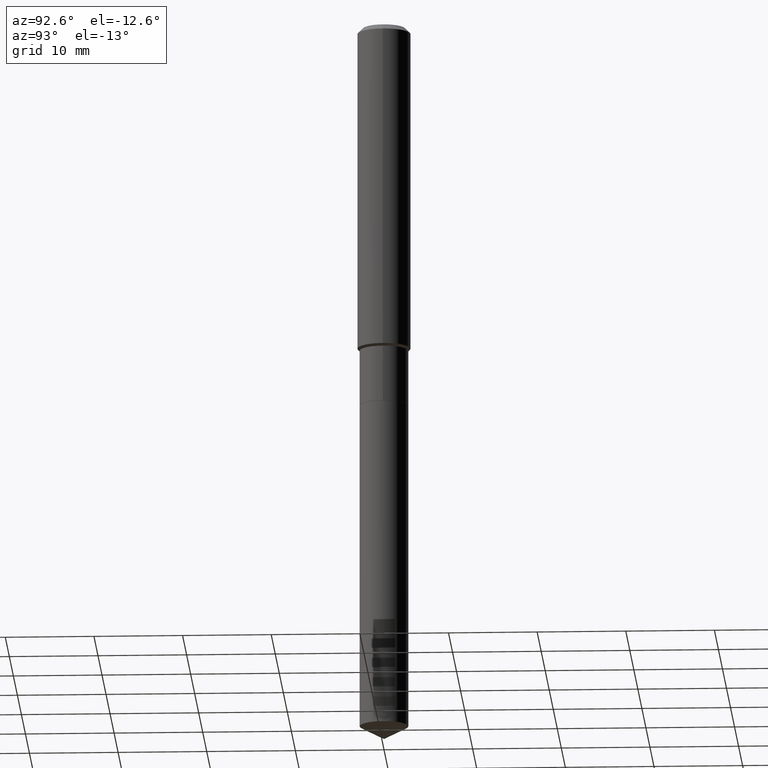
[diagram: clean part render]
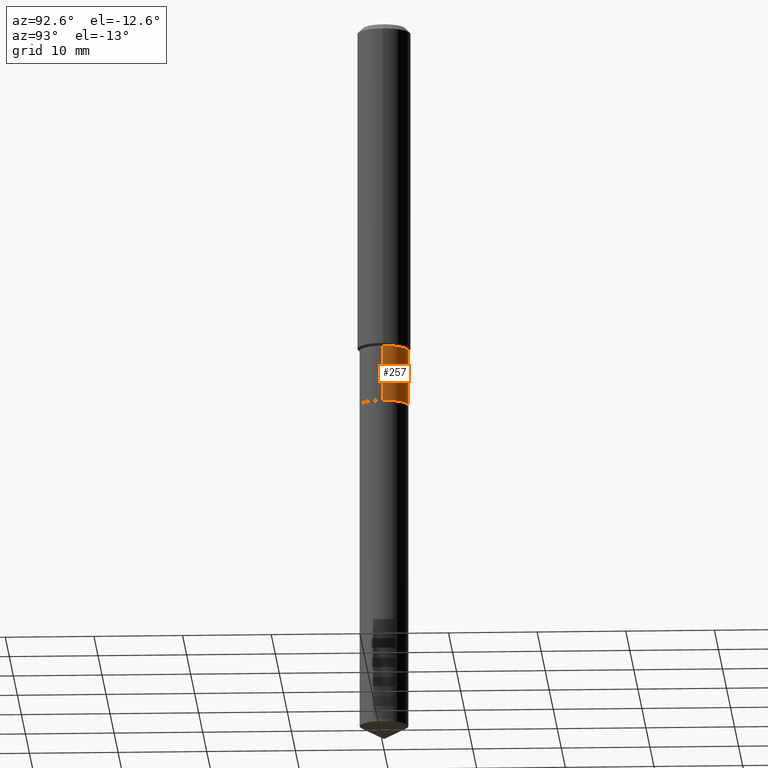
[diagram: same view with one face highlighted and labeled with its STEP entity id]
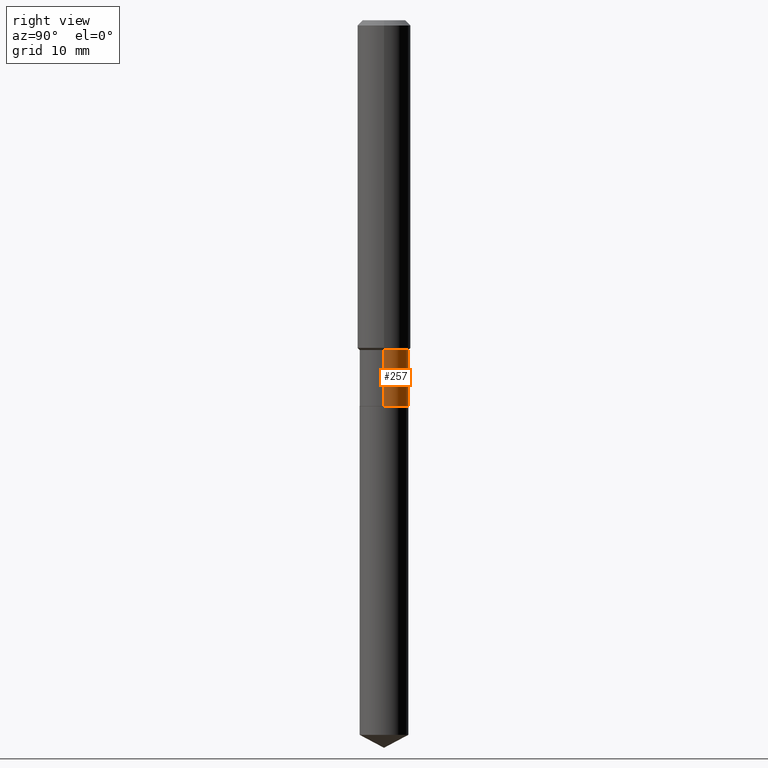
[diagram: same view with one face highlighted and labeled with its STEP entity id]
A machine part, auxiliary view. The second image highlights one B-rep face of the part: STEP entity #257.
A second angle (right view) of the same face is appended — the face is thin or edge-on in the first view.
In plain terms, the highlighted cylindrical surface (edge-blend (fillet) strip) has radius 2.7495 mm, axis along (-0, 0, 1).
Its self-contained STEP definition (entity closure, byte-faithful):
#3 = DIRECTION ( 'NONE',  ( 1.000000000000000000, -6.982962677686267499E-15, 0.000000000000000000 ) ) ;
#26 = CARTESIAN_POINT ( 'NONE',  ( -0.1082499999999999851, 7.691625114603083455E-16, -5.324747235200934608E-30 ) ) ;
#33 = CIRCLE ( 'NONE', #162, 0.1082499999999999990 ) ;
#43 = AXIS2_PLACEMENT_3D ( 'NONE', #204, #444, #176 ) ;
#45 = EDGE_CURVE ( 'NONE', #235, #201, #421, .T. ) ;
#50 = CYLINDRICAL_SURFACE ( 'NONE', #416, 0.1082499999999999851 ) ;
#64 = CARTESIAN_POINT ( 'NONE',  ( 0.1082499999999999851, -7.559057098595382610E-16, 5.278461359799099291E-30 ) ) ;
#81 = CARTESIAN_POINT ( 'NONE',  ( 0.000000000000000000, 0.000000000000000000, 0.000000000000000000 ) ) ;
#93 = ORIENTED_EDGE ( 'NONE', *, *, #391, .F. ) ;
#97 = EDGE_CURVE ( 'NONE', #235, #127, #33, .T. ) ;
#101 = DIRECTION ( 'NONE',  ( -2.445468806185136597E-29, 3.491481338843145583E-15, 1.000000000000000000 ) ) ;
#110 = DIRECTION ( 'NONE',  ( -2.445468806185136877E-29, 3.491481338843145188E-15, 1.000000000000000000 ) ) ;
#113 = CARTESIAN_POINT ( 'NONE',  ( -0.1082499999999999990, -4.774436984287896921E-15, -1.712000000000000188 ) ) ;
#114 = EDGE_CURVE ( 'NONE', #127, #227, #222, .T. ) ;
#127 = VERTEX_POINT ( 'NONE', #113 ) ;
#156 = CIRCLE ( 'NONE', #43, 0.1082499999999999712 ) ;
#157 = CARTESIAN_POINT ( 'NONE',  ( -0.1082499999999999712, -4.774436984287896921E-15, -1.463500000000000023 ) ) ;
#160 = ORIENTED_EDGE ( 'NONE', *, *, #45, .F. ) ;
#162 = AXIS2_PLACEMENT_3D ( 'NONE', #481, #101, #3 ) ;
#166 = EDGE_LOOP ( 'NONE', ( #386, #243, #93, #160 ) ) ;
#176 = DIRECTION ( 'NONE',  ( 1.000000000000000000, -6.982962677686269077E-15, 0.000000000000000000 ) ) ;
#194 = VECTOR ( 'NONE', #252, 39.37007874015748143 ) ;
#197 = DIRECTION ( 'NONE',  ( 1.000000000000000000, -6.982962677686266711E-15, 4.876176775795935232E-29 ) ) ;
#201 = VERTEX_POINT ( 'NONE', #346 ) ;
#204 = CARTESIAN_POINT ( 'NONE',  ( 3.578943597851947764E-29, -5.109782939396944472E-15, -1.463500000000000023 ) ) ;
#222 = LINE ( 'NONE', #26, #194 ) ;
#227 = VERTEX_POINT ( 'NONE', #157 ) ;
#235 = VERTEX_POINT ( 'NONE', #266 ) ;
#243 = ORIENTED_EDGE ( 'NONE', *, *, #114, .T. ) ;
#252 = DIRECTION ( 'NONE',  ( -2.445468806185136877E-29, 3.491481338843145188E-15, 1.000000000000000000 ) ) ;
#257 = ADVANCED_FACE ( 'NONE', ( #267 ), #50, .T. ) ;
#266 = CARTESIAN_POINT ( 'NONE',  ( 0.1082499999999999990, -6.733321761959004322E-15, -1.712000000000000188 ) ) ;
#267 = FACE_OUTER_BOUND ( 'NONE', #166, .T. ) ;
#346 = CARTESIAN_POINT ( 'NONE',  ( 0.1082499999999999712, -5.865688649256482338E-15, -1.463500000000000023 ) ) ;
#386 = ORIENTED_EDGE ( 'NONE', *, *, #97, .T. ) ;
#391 = EDGE_CURVE ( 'NONE', #201, #227, #156, .T. ) ;
#416 = AXIS2_PLACEMENT_3D ( 'NONE', #81, #462, #197 ) ;
#421 = LINE ( 'NONE', #64, #443 ) ;
#443 = VECTOR ( 'NONE', #110, 39.37007874015748143 ) ;
#444 = DIRECTION ( 'NONE',  ( -2.445468806185136597E-29, 3.491481338843145583E-15, 1.000000000000000000 ) ) ;
#462 = DIRECTION ( 'NONE',  ( -2.445468806185136597E-29, 3.491481338843145583E-15, 1.000000000000000000 ) ) ;
#481 = CARTESIAN_POINT ( 'NONE',  ( 4.186642596188954069E-29, -5.977416052099465667E-15, -1.712000000000000188 ) ) ;